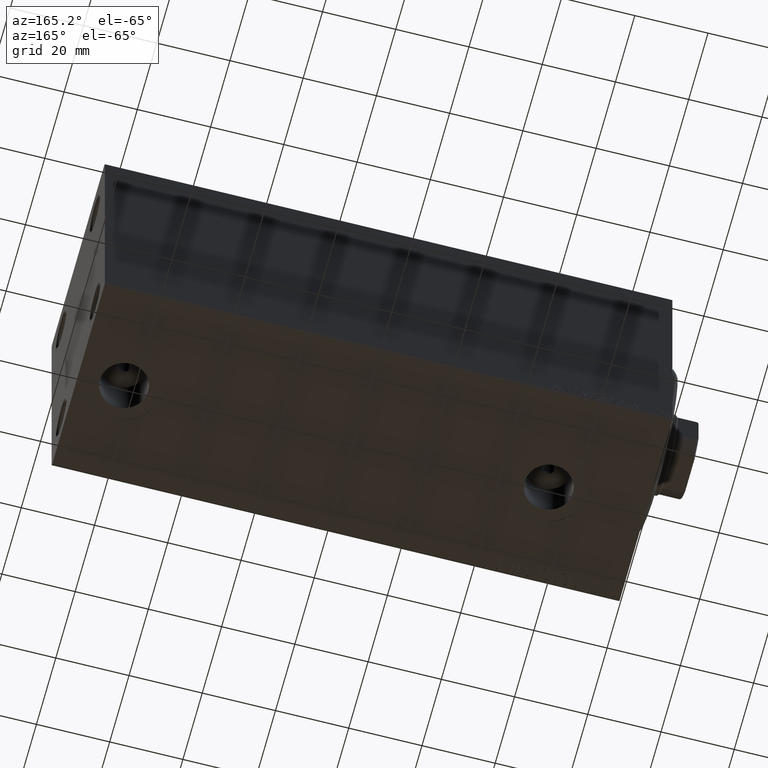
[diagram: clean part render]
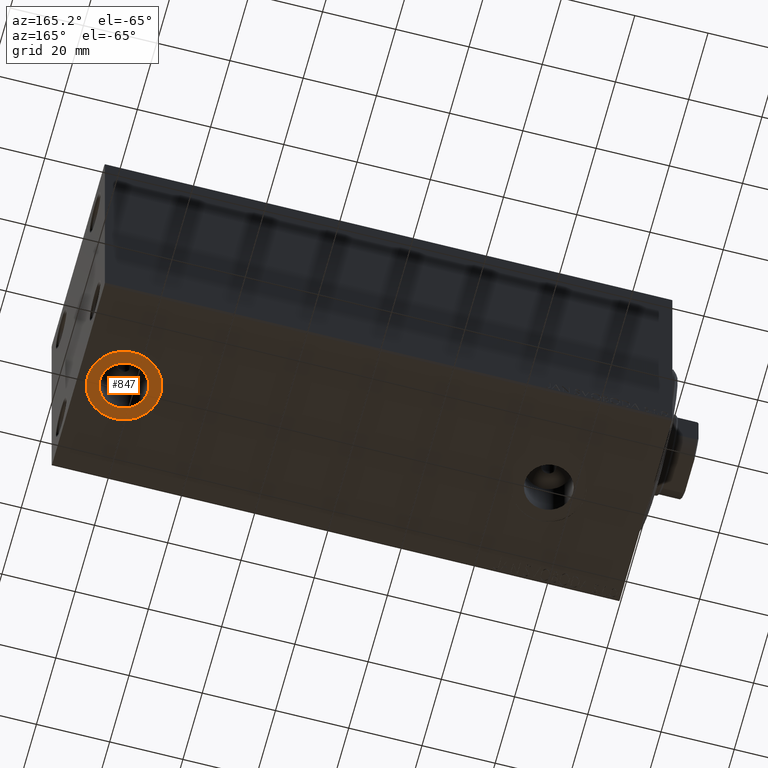
[diagram: same view with one face highlighted and labeled with its STEP entity id]
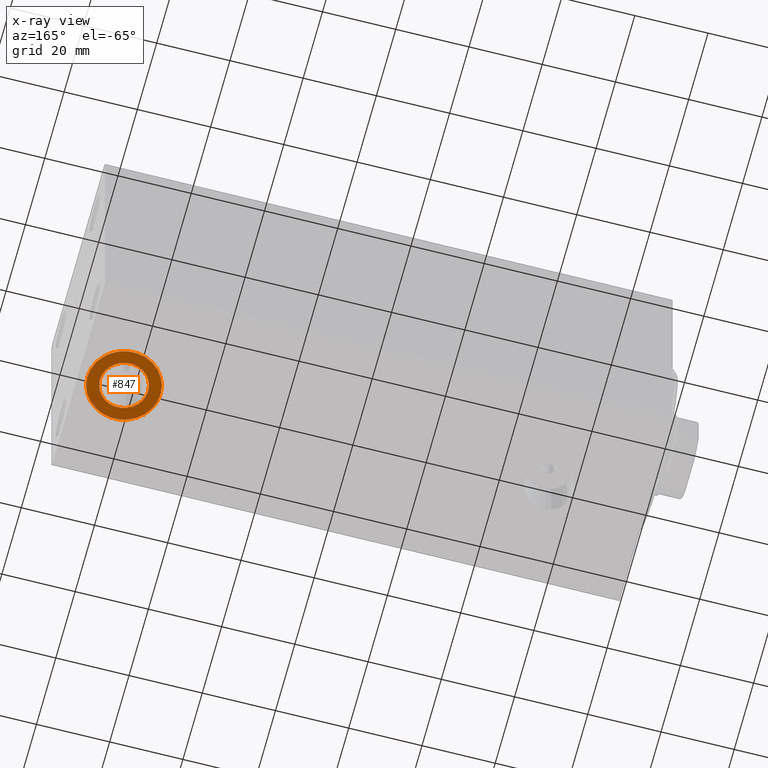
[diagram: x-ray of the same camera — body ghosted, the highlighted face saturated]
A machine part, auxiliary view. The second image highlights one B-rep face of the part: STEP entity #847.
The next image is the same camera in x-ray: the body ghosted, the highlighted face saturated — about 0% of this face is hidden behind the body in this view.
In plain terms, the highlighted planar face has unit normal (0, 0, -1).
Its self-contained STEP definition (entity closure, byte-faithful):
#847 = ADVANCED_FACE ( 'NONE', ( #20598, #21682 ), #34664, .T. ) ;
#1192 = DIRECTION ( 'NONE',  ( -1.000000000000000000, 0.000000000000000000, 0.000000000000000000 ) ) ;
#1641 = VERTEX_POINT ( 'NONE', #31660 ) ;
#2495 = ORIENTED_EDGE ( 'NONE', *, *, #34742, .F. ) ;
#2721 = CARTESIAN_POINT ( 'NONE',  ( 142.4999999999999716, -1.793166754111494622E-14, -37.39999999999999858 ) ) ;
#3168 = EDGE_CURVE ( 'NONE', #24252, #25729, #4013, .T. ) ;
#4013 = CIRCLE ( 'NONE', #7685, 6.580000000000002736 ) ;
#4177 = CARTESIAN_POINT ( 'NONE',  ( 142.4999999999999716, -1.793166754111494622E-14, -37.39999999999999858 ) ) ;
#6380 = DIRECTION ( 'NONE',  ( -1.000000000000000000, 0.000000000000000000, 0.000000000000000000 ) ) ;
#7685 = AXIS2_PLACEMENT_3D ( 'NONE', #2721, #35200, #16762 ) ;
#10505 = CARTESIAN_POINT ( 'NONE',  ( 142.4999999999999716, -1.793166754111494622E-14, -37.39999999999999858 ) ) ;
#11282 = CARTESIAN_POINT ( 'NONE',  ( 152.4999999999999716, -1.670702074196759474E-14, -37.39999999999999858 ) ) ;
#11825 = CIRCLE ( 'NONE', #37602, 10.00000000000000888 ) ;
#12295 = ORIENTED_EDGE ( 'NONE', *, *, #3168, .F. ) ;
#13511 = DIRECTION ( 'NONE',  ( 0.000000000000000000, 0.000000000000000000, -1.000000000000000000 ) ) ;
#14003 = CARTESIAN_POINT ( 'NONE',  ( 142.4999999999999716, -1.793166754111494622E-14, -37.39999999999999858 ) ) ;
#15722 = AXIS2_PLACEMENT_3D ( 'NONE', #18434, #22131, #27971 ) ;
#16762 = DIRECTION ( 'NONE',  ( -1.000000000000000000, 0.000000000000000000, 0.000000000000000000 ) ) ;
#17912 = EDGE_CURVE ( 'NONE', #30198, #1641, #11825, .T. ) ;
#18434 = CARTESIAN_POINT ( 'NONE',  ( 142.4999999999999716, -1.793166754111494622E-14, -37.39999999999999858 ) ) ;
#18803 = AXIS2_PLACEMENT_3D ( 'NONE', #10505, #13511, #6380 ) ;
#20598 = FACE_BOUND ( 'NONE', #40053, .T. ) ;
#21682 = FACE_OUTER_BOUND ( 'NONE', #42952, .T. ) ;
#22131 = DIRECTION ( 'NONE',  ( 0.000000000000000000, 0.000000000000000000, -1.000000000000000000 ) ) ;
#22358 = EDGE_CURVE ( 'NONE', #1641, #30198, #27432, .T. ) ;
#24252 = VERTEX_POINT ( 'NONE', #38479 ) ;
#25729 = VERTEX_POINT ( 'NONE', #35565 ) ;
#27432 = CIRCLE ( 'NONE', #45109, 10.00000000000000888 ) ;
#27971 = DIRECTION ( 'NONE',  ( -1.000000000000000000, 0.000000000000000000, -0.000000000000000000 ) ) ;
#28073 = DIRECTION ( 'NONE',  ( 0.000000000000000000, 0.000000000000000000, -1.000000000000000000 ) ) ;
#30198 = VERTEX_POINT ( 'NONE', #11282 ) ;
#31660 = CARTESIAN_POINT ( 'NONE',  ( 132.4999999999999432, -1.793166754111494622E-14, -37.39999999999999858 ) ) ;
#34486 = ORIENTED_EDGE ( 'NONE', *, *, #22358, .T. ) ;
#34543 = DIRECTION ( 'NONE',  ( -1.000000000000000000, 0.000000000000000000, 0.000000000000000000 ) ) ;
#34664 = PLANE ( 'NONE',  #15722 ) ;
#34742 = EDGE_CURVE ( 'NONE', #25729, #24252, #41654, .T. ) ;
#35200 = DIRECTION ( 'NONE',  ( 0.000000000000000000, 0.000000000000000000, -1.000000000000000000 ) ) ;
#35307 = DIRECTION ( 'NONE',  ( 0.000000000000000000, 0.000000000000000000, -1.000000000000000000 ) ) ;
#35565 = CARTESIAN_POINT ( 'NONE',  ( 135.9199999999999591, -1.793166754111494622E-14, -37.39999999999999858 ) ) ;
#37602 = AXIS2_PLACEMENT_3D ( 'NONE', #4177, #35307, #1192 ) ;
#38479 = CARTESIAN_POINT ( 'NONE',  ( 149.0799999999999557, -1.712584994727598403E-14, -37.39999999999999858 ) ) ;
#40053 = EDGE_LOOP ( 'NONE', ( #2495, #12295 ) ) ;
#41528 = ORIENTED_EDGE ( 'NONE', *, *, #17912, .T. ) ;
#41654 = CIRCLE ( 'NONE', #18803, 6.580000000000002736 ) ;
#42952 = EDGE_LOOP ( 'NONE', ( #34486, #41528 ) ) ;
#45109 = AXIS2_PLACEMENT_3D ( 'NONE', #14003, #28073, #34543 ) ;